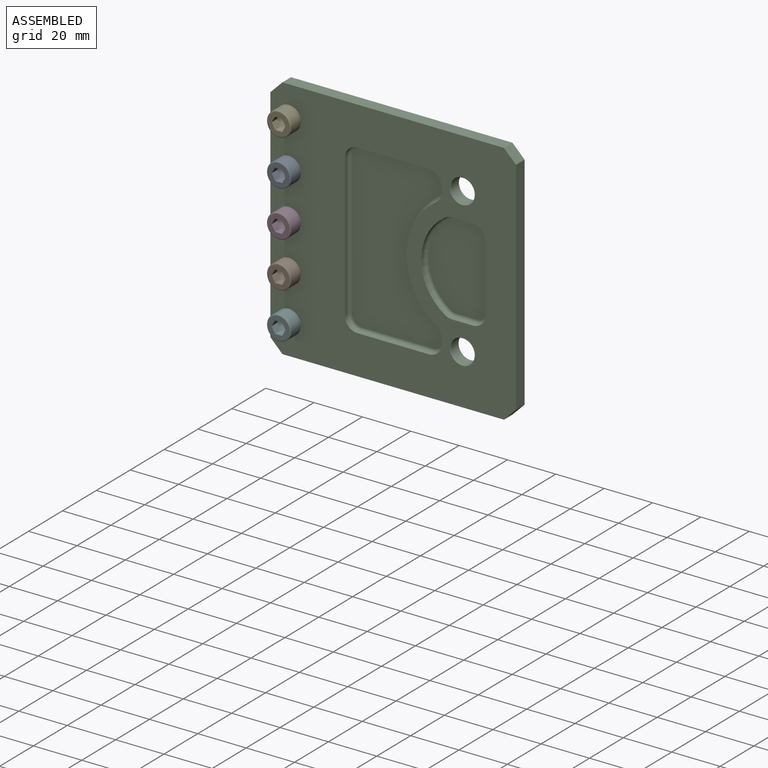
[diagram: assembled view]
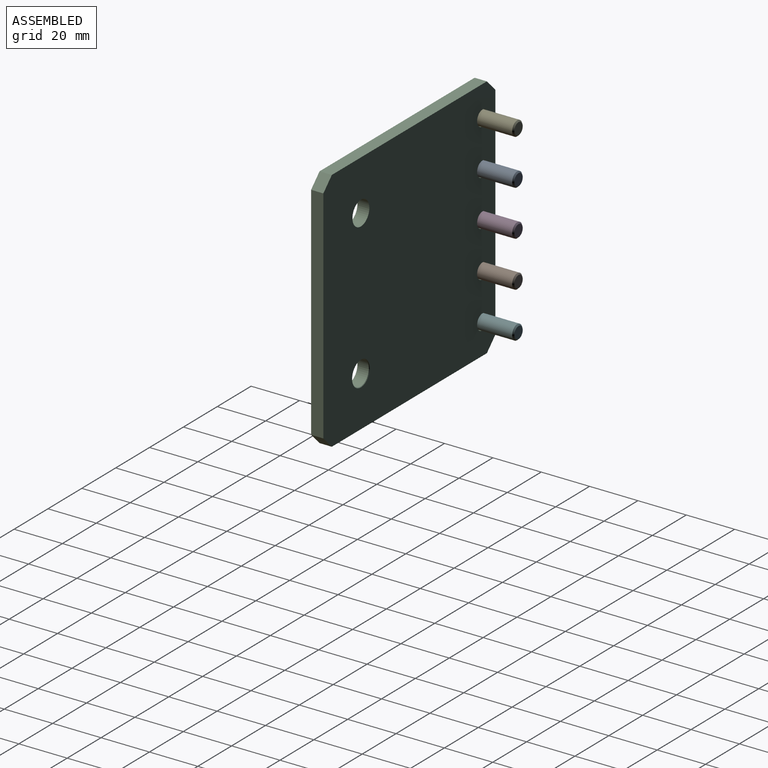
[diagram: assembled view, second angle]
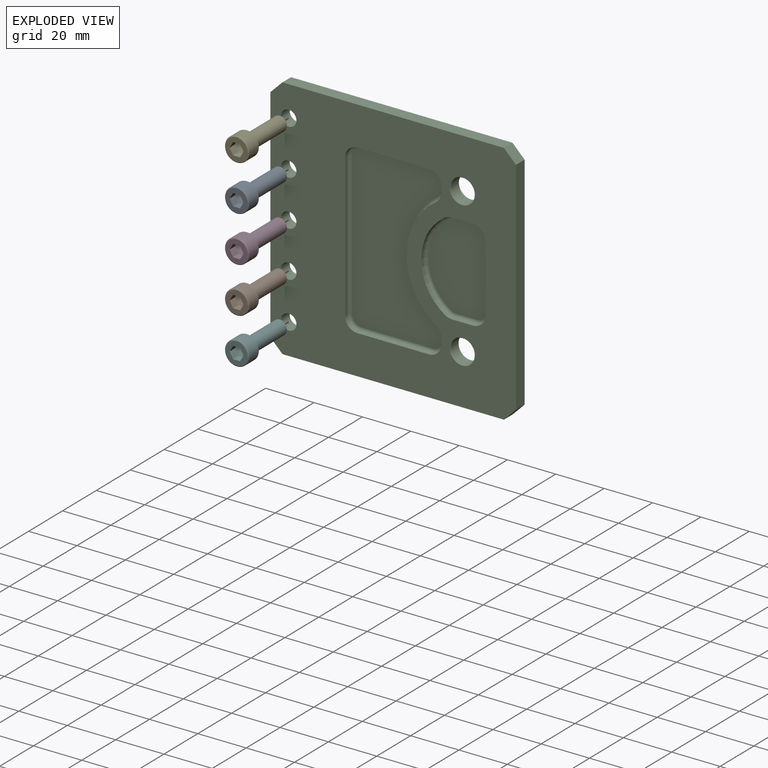
[diagram: exploded view]
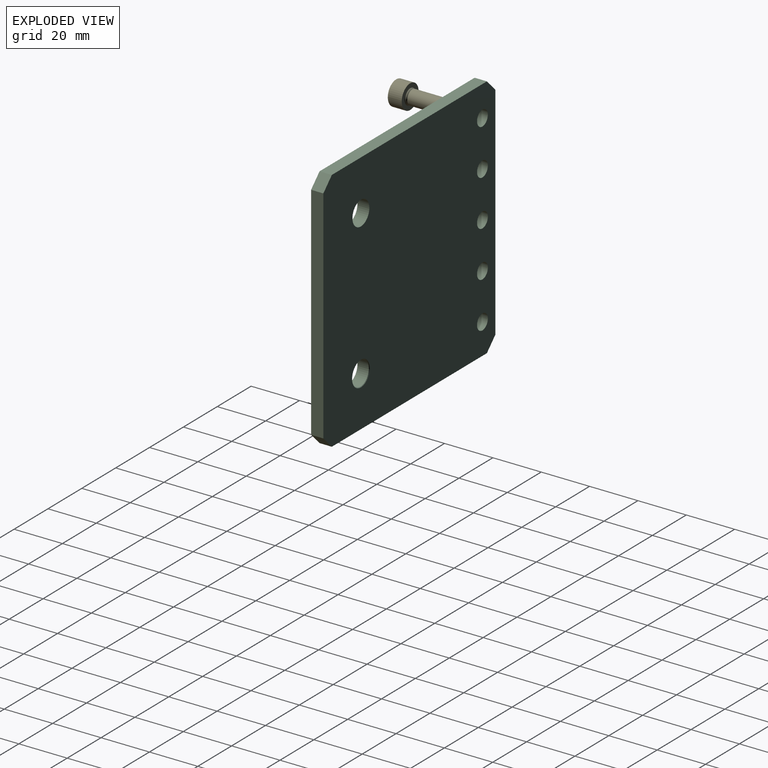
[diagram: exploded view, second angle]
ASSEMBLY  parts=6 mates=5
PART A: 18 faces, bbox 10.8x10.8x26 mm
  f0: cone r=2.73mm half-angle=45deg, axis (0,0,1), area 13.1mm2, adj f1,f16
  f1: cylinder r=3mm len=18.57mm, axis (0,0,-1), area 350mm2, adj f0,f15
  f2: cone r=2.73mm half-angle=45deg, axis (0,0,1), area 13.1mm2, adj f3,f15
  f3: cylinder r=3mm len=6mm, axis (0,0,-1), area 0.9mm2, adj f2,f4
  f4: torus R=3.3mm, axis (0,0,-1), area 9.2mm2, adj f3,f14
  f5: cylinder r=5mm len=10mm, axis (0,0,-1), area 172.8mm2, adj f6,f14
  f6: torus R=4.5mm, axis (0,0,-1), area 23.8mm2, adj f5,f17
  f7: cone r=1.44mm half-angle=60deg, axis (0,0,1), area 25mm2, adj f8,f9,f10,f11,f12,f13
  f8: plane 3.33x2.5mm, normal (0.87,0.5,0), area 9.1mm2, adj f7,f9,f13,f17
  f9: plane 3.33x2.89mm, normal (0,1,0), area 9.1mm2, adj f7,f8,f10,f17
  f10: plane 3.33x2.5mm, normal (-0.87,0.5,0), area 9.1mm2, adj f7,f9,f11,f17
  f11: plane 3.33x2.5mm, normal (-0.87,-0.5,0), area 9.1mm2, adj f7,f10,f12,f17
  f12: plane 3.26x2.89mm, normal (0,-1,0), area 9.1mm2, adj f7,f11,f13,f17
  f13: plane 3.33x2.5mm, normal (0.87,-0.5,0), area 9.1mm2, adj f7,f8,f12,f17
  f14: plane 10x10mm, normal (0,0,-1), area 44.3mm2, adj f4,f5
  f15: plane 6x6mm, normal (0,0,1), area 9.3mm2, adj f1,f2
  f16: plane 4.92x4.92mm, normal (0,0,-1), area 19mm2, adj f0
  f17: plane 9x9mm, normal (0,0,1), area 42mm2, adj f6,f8,f9,f10,f11,f12,f13
PART B: same geometry as A
PART C: 62 faces, bbox 101.6x5.1x101.6 mm
  f0: plane 101.6x101.6mm, normal (0,-1,0), area 6832.7mm2, adj f1,f2,f3,f4,f6,f7,f8,f9
  f1: plane 91.6x5.08mm, normal (-1,0,0), area 465.3mm2, adj f0,f5,f58,f59
  f2: plane 91.6x5.08mm, normal (0,0,-1), area 465.3mm2, adj f0,f5,f59,f61
  f3: plane 91.6x5.08mm, normal (1,0,0), area 465.3mm2, adj f0,f5,f60,f61
  f4: plane 91.6x5.08mm, normal (0,0,1), area 465.3mm2, adj f0,f5,f58,f60
  f5: plane 101.6x101.6mm, normal (0,1,0), area 9950.7mm2, adj f1,f2,f3,f4,f6,f7,f8,f9
  f6: cylinder r=3.17mm len=6.35mm, axis (0,1,0), area 101.3mm2, adj f0,f5
  f7: cylinder r=3.17mm len=6.35mm, axis (0,1,0), area 101.3mm2, adj f0,f5
  f8: cylinder r=3.17mm len=6.35mm, axis (0,1,0), area 101.3mm2, adj f0,f5
  f9: cylinder r=3.17mm len=6.35mm, axis (0,1,0), area 101.3mm2, adj f0,f5
  f10: cylinder r=3.17mm len=6.35mm, axis (0,1,0), area 101.3mm2, adj f0,f5
  f11: plane 29.68x1.27mm, normal (0,0,-1), area 37.7mm2, adj f0,f18,f23,f33
  f12: plane 59.18x1.27mm, normal (1,0,0), area 75.2mm2, adj f0,f18,f19,f34
  f13: plane 29.68x1.27mm, normal (0,0,1), area 37.7mm2, adj f0,f19,f20,f30
  f14: plane 2.35x1.27mm, normal (-1,0,0), area 3mm2, adj f0,f20,f21,f26
  f15: cylinder r=27.83mm len=46.06mm, axis (0,-1,0), area 68.9mm2, adj f0,f21,f22,f25
  f16: plane 2.35x1.27mm, normal (-1,0,0), area 3mm2, adj f0,f22,f23,f29
  f17: plane 66.8x37.3mm, normal (0,-1,0), area 1963.3mm2, adj f24,f25,f26,f27,f28,f29,f30,f31
  f18: cylinder r=5.08mm len=5.08mm, axis (0,1,0), area 10.1mm2, adj f0,f11,f12,f35
  f19: cylinder r=5.08mm len=5.08mm, axis (0,-1,0), area 10.1mm2, adj f0,f12,f13,f32
  f20: cylinder r=5.08mm len=5.08mm, axis (0,1,0), area 10.1mm2, adj f0,f13,f14,f28
  f21: cylinder r=5.08mm len=4.2mm, axis (0,-1,0), area 6.3mm2, adj f0,f14,f15,f24
  f22: cylinder r=5.08mm len=4.2mm, axis (0,-1,0), area 6.3mm2, adj f0,f15,f16,f27
  f23: cylinder r=5.08mm len=5.08mm, axis (0,-1,0), area 10.1mm2, adj f0,f11,f16,f31
  f24: torus R=3.81mm, axis (0,-1,0), area 9mm2, adj f17,f21,f25,f26
  f25: torus R=29.1mm, axis (0,-1,0), area 110mm2, adj f15,f17,f24,f27
  f26: cylinder r=1.27mm len=2.35mm, axis (0,0,1), area 4.7mm2, adj f14,f17,f24,f28
  f27: torus R=3.81mm, axis (0,-1,0), area 9mm2, adj f17,f22,f25,f29
  f28: torus R=3.81mm, axis (0,-1,0), area 14.5mm2, adj f17,f20,f26,f30
  f29: cylinder r=1.27mm len=2.35mm, axis (0,0,1), area 4.7mm2, adj f16,f17,f27,f31
  f30: cylinder r=1.27mm len=29.68mm, axis (1,0,0), area 59.2mm2, adj f13,f17,f28,f32
  f31: torus R=3.81mm, axis (0,-1,0), area 14.5mm2, adj f17,f23,f29,f33
  f32: torus R=3.81mm, axis (0,-1,0), area 14.5mm2, adj f17,f19,f30,f34
  f33: cylinder r=1.27mm len=29.68mm, axis (-1,0,0), area 59.2mm2, adj f11,f17,f31,f35
  f34: cylinder r=1.27mm len=59.18mm, axis (0,0,-1), area 118mm2, adj f12,f17,f32,f35
  f35: torus R=3.81mm, axis (0,-1,0), area 14.5mm2, adj f17,f18,f33,f34
  f36: plane 8.77x1.27mm, normal (0,0,1), area 11.1mm2, adj f0,f41,f44,f50
  f37: plane 27.94x1.27mm, normal (-1,0,0), area 35.5mm2, adj f0,f41,f42,f51
  f38: plane 8.77x1.27mm, normal (0,0,-1), area 11.1mm2, adj f0,f42,f43,f47
  f39: cylinder r=21.74mm len=36.46mm, axis (0,-1,0), area 54.9mm2, adj f0,f43,f44,f46
  f40: plane 35.56x23.98mm, normal (0,-1,0), area 739.6mm2, adj f45,f46,f47,f48,f49,f50,f51,f52
  f41: cylinder r=5.08mm len=5.08mm, axis (0,1,0), area 10.1mm2, adj f0,f36,f37,f52
  f42: cylinder r=5.08mm len=5.08mm, axis (0,1,0), area 10.1mm2, adj f0,f37,f38,f49
  f43: cylinder r=5.08mm len=2.77mm, axis (0,-1,0), area 3.7mm2, adj f0,f38,f39,f45
  f44: cylinder r=5.08mm len=2.77mm, axis (0,-1,0), area 3.7mm2, adj f0,f36,f39,f48
  f45: torus R=3.81mm, axis (0,-1,0), area 5.3mm2, adj f40,f43,f46,f47
  f46: torus R=20.47mm, axis (0,-1,0), area 84.5mm2, adj f39,f40,f45,f48
  f47: cylinder r=1.27mm len=8.77mm, axis (-1,0,0), area 17.5mm2, adj f38,f40,f45,f49
  f48: torus R=3.81mm, axis (0,-1,0), area 5.3mm2, adj f40,f44,f46,f50
  f49: torus R=3.81mm, axis (0,-1,0), area 14.5mm2, adj f40,f42,f47,f51
  f50: cylinder r=1.27mm len=8.77mm, axis (1,0,0), area 17.5mm2, adj f36,f40,f48,f52
  f51: cylinder r=1.27mm len=27.94mm, axis (0,0,1), area 55.7mm2, adj f37,f40,f49,f52
  f52: torus R=3.81mm, axis (0,-1,0), area 14.5mm2, adj f40,f41,f50,f51
  f53: cylinder r=5mm len=10mm, axis (0,-1,0), area 147mm2, adj f55,f56
  f54: cylinder r=5mm len=10mm, axis (0,-1,0), area 153.3mm2, adj f5,f57
  f55: cone r=5.2mm half-angle=45deg, axis (0,1,0), area 9.1mm2, adj f5,f53
  f56: cone r=5mm half-angle=45deg, axis (0,-1,0), area 9.1mm2, adj f0,f53
  f57: cone r=5mm half-angle=45deg, axis (0,-1,0), area 9.1mm2, adj f0,f54
  f58: plane 5.08x5mm, normal (-0.71,0,0.71), area 35.9mm2, adj f0,f1,f4,f5
  f59: plane 5.08x5mm, normal (-0.71,0,-0.71), area 35.9mm2, adj f0,f1,f2,f5
  f60: plane 5.08x5mm, normal (0.71,0,0.71), area 35.9mm2, adj f0,f3,f4,f5
  f61: plane 5.08x5mm, normal (0.71,0,-0.71), area 35.9mm2, adj f0,f2,f3,f5
PART D: same geometry as A
PART E: same geometry as A
PART F: same geometry as A
PLACE A rot(axis=(0,-0.71,0.71),180deg) t=(3.59,37.18,3.91)mm
PLACE B rot(axis=(1,0,0),90deg) t=(3.59,37.18,-34.19)mm
PLACE C t=(46.77,42.26,-15.14)mm fixed
PLACE D rot(axis=(1,0,0),90deg) t=(3.59,37.18,-15.14)mm
PLACE E rot(axis=(1,0,0),90deg) t=(3.59,37.18,22.96)mm
PLACE F rot(axis=(1,0,0),90deg) t=(3.59,37.18,-53.24)mm
MATE fastened E.f1 <-> C.f10  axis (0,1,0) through (3.59,37.18,22.96)mm
MATE fastened F.f1 <-> C.f6  axis (0,1,0) through (3.59,37.18,-53.24)mm
MATE fastened B.f1 <-> C.f7  axis (0,1,0) through (3.59,37.18,-34.19)mm
MATE fastened A.f1 <-> C.f9  axis (0,1,0) through (3.59,37.18,3.91)mm
MATE fastened D.f1 <-> C.f8  axis (0,1,0) through (3.59,37.18,-15.14)mm
